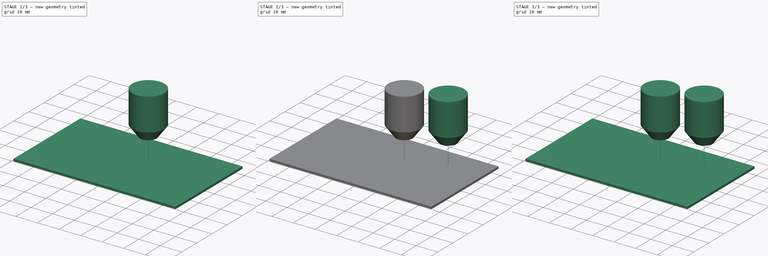
[diagram: build sequence overview — one tinted view per stage of 3, left to right]
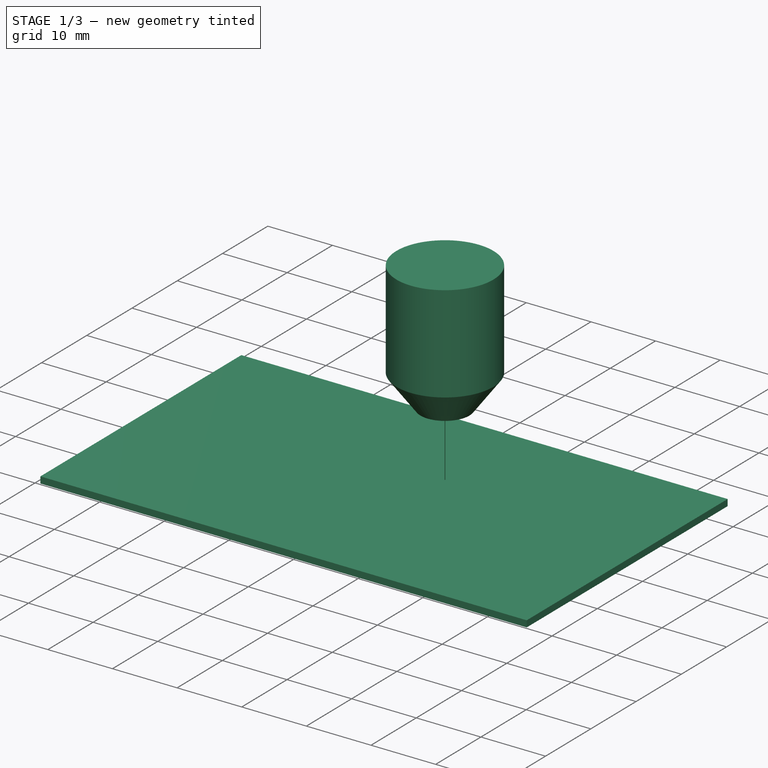
[diagram: stage 1 of 3 — iso view after this stage's code; geometry added in this stage tinted green]
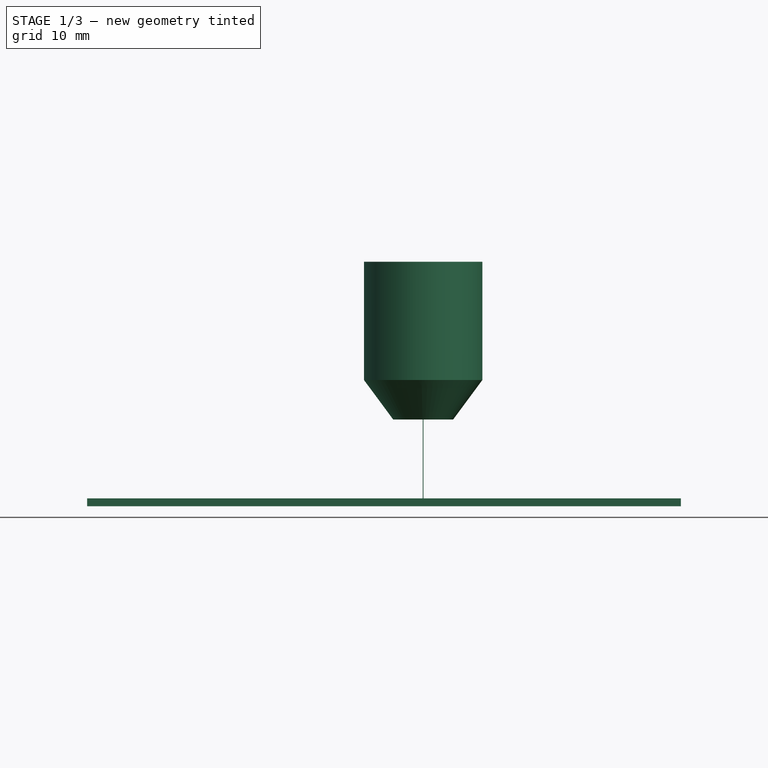
[diagram: stage 1 of 3 — front view after this stage's code; geometry added in this stage tinted green]
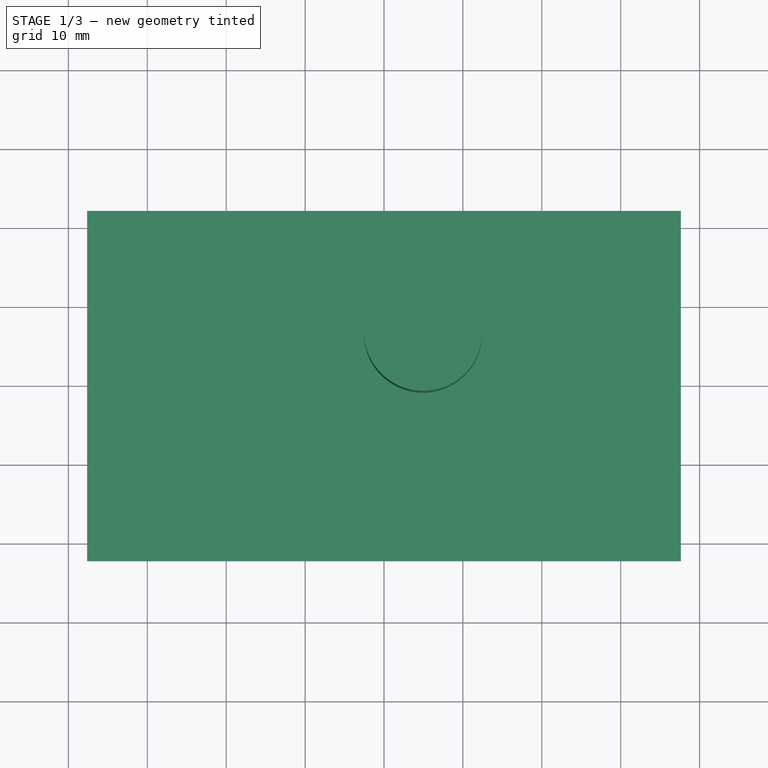
[diagram: stage 1 of 3 — top view after this stage's code; geometry added in this stage tinted green]
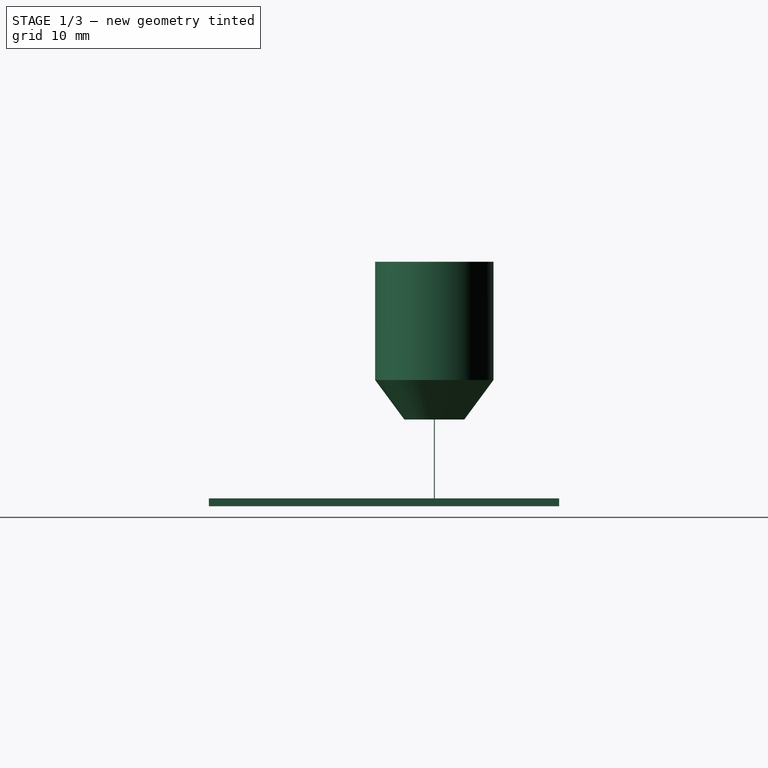
[diagram: stage 1 of 3 — right view after this stage's code; geometry added in this stage tinted green]
FCSTD DOCUMENT  (FreeCAD 0.20R26075 +2 (Git))
Label: test3
License: All rights reserved
LicenseURL: http://en.wikipedia.org/wiki/All_rights_reserved
objects: Part::FeaturePython×4, Path::FeaturePython×4, Sketcher::SketchObject×2, App::DocumentObjectGroup×2, PartDesign::Pad×1, PartDesign::Body×1, App::FeaturePython×1, Part::Part2DObjectPython×1, Path::FeatureCompoundPython×1
note: 10 computed .brp shape members not serialized (recipe doc carries the construction recipe); baked Part::Feature solids carry a one-line shape summary decoded from their .brp

FEATURE [Path::FeaturePython] Engrave  # Path/CAM operation (typed FeaturePython)
  Active = false
  BaseShapes = -> [Clone2D]
  ClearanceHeight = 6
  CoolantMode = None
  CycleTime = 00:00:00
  FinalDepth = 0.9
  OpFinalDepth = 0.9
  OpStartDepth = 1
  OpStockZMax = 1
  OpStockZMin = 0
  OpToolDiameter = 0.1
  SafeHeight = 4
  StartDepth = 1
  StartVertex = 0
  StepDown = 0.1
  ToolController = -> _00um_laser
  expr: StartDepth = OpStartDepth
  expr: FinalDepth = OpFinalDepth
  expr: StepDown = OpToolDiameter
  expr: SafeHeight = OpStockZMax + SetupSheet.SafeHeightOffset
  expr: ClearanceHeight = OpStockZMax + SetupSheet.ClearanceHeightOffset
FEATURE [Path::FeaturePython] Custom  # Path/CAM operation (typed FeaturePython)
  Active = true
  CoolantMode = None
  CycleTime = 00:00:00
  Gcode = G0 Z1 | g1  X0 Y2 F1000 | G2 X0 Y2.0 I0.0 J5 | g1  X20 Y2 | G2 X20 Y12.0 I0.0 J5 | g1  X0 Y-10 | G3 X0 Y-10.0 I0.0 J5 | g1  X20 Y-10 | G3 X20 Y0.0 I0.0 J5
  OpStockZMax = 1
  OpStockZMin = 0
  OpToolDiameter = 0.1
  StartDepth = 1
  ToolController = -> _00um_laser
FEATURE [Path::FeatureCompoundPython] Operations  # Path/CAM operation (typed FeaturePython)
  Group = -> [Engrave,Custom]
  UsePlacements = false
FEATURE [Path::FeaturePython] Job  # Path/CAM operation (typed FeaturePython)
  CycleTime = 00:00:00
  Fixtures = G54
  GeometryTolerance = 0.01
  Model = -> Model
  Operations = -> Operations
  OrderOutputBy = 0
  PostProcessor = 7
  SetupSheet = -> SetupSheet
  SplitOutput = false
  Stock = -> Clone001
  Tools = -> Tools
FEATURE [Part::FeaturePython] CutTool  # WARN: FeaturePython — macro-defined, semantics opaque (R4)
  Placement = pos=(4.96123,6.37858,1) rot=(0,0,1;0rad)
FEATURE [Part::FeaturePython] CutMaterial  # WARN: FeaturePython — macro-defined, semantics opaque (R4)
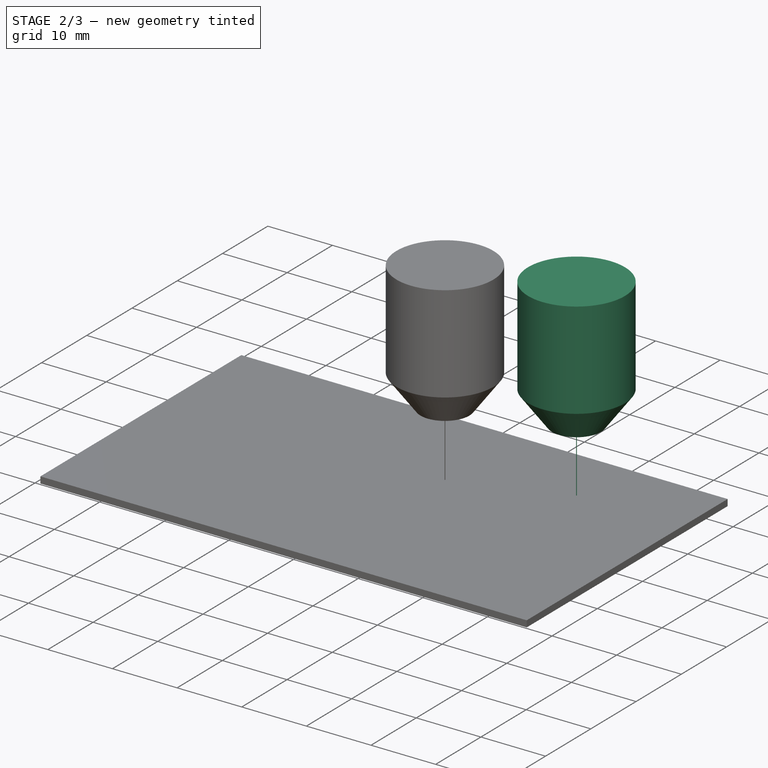
[diagram: stage 2 of 3 — iso view after this stage's code; geometry added in this stage tinted green]
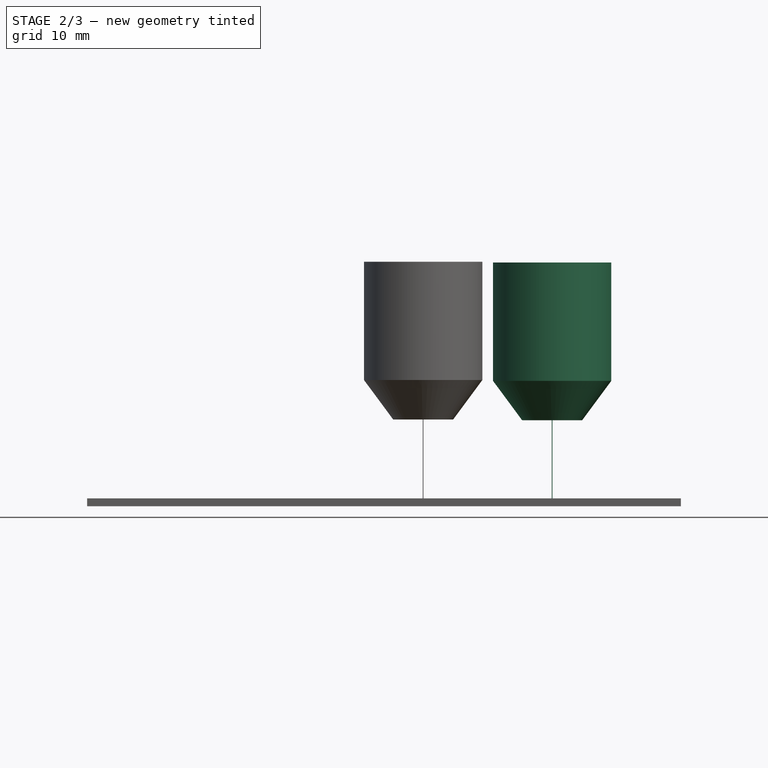
[diagram: stage 2 of 3 — front view after this stage's code; geometry added in this stage tinted green]
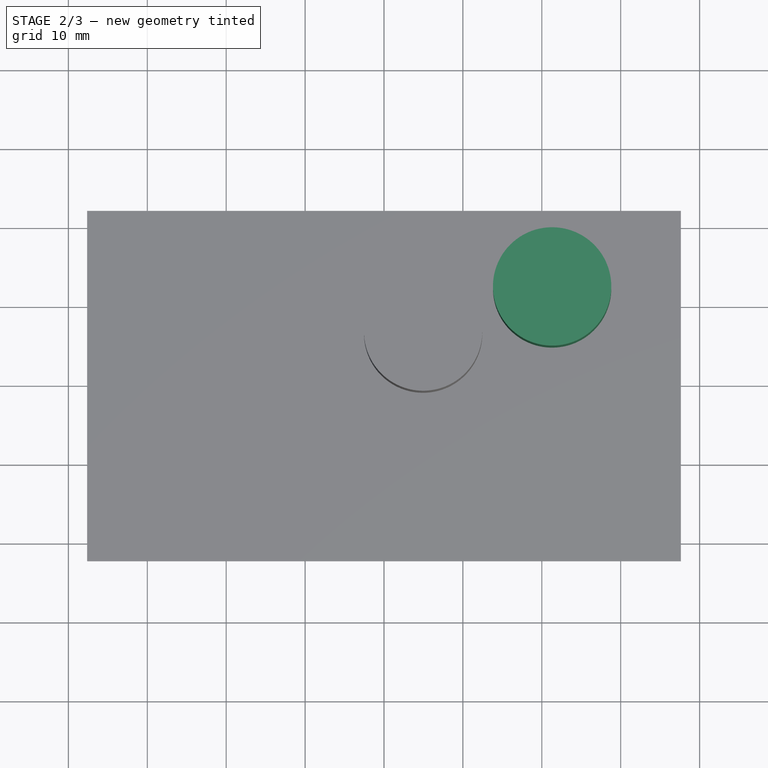
[diagram: stage 2 of 3 — top view after this stage's code; geometry added in this stage tinted green]
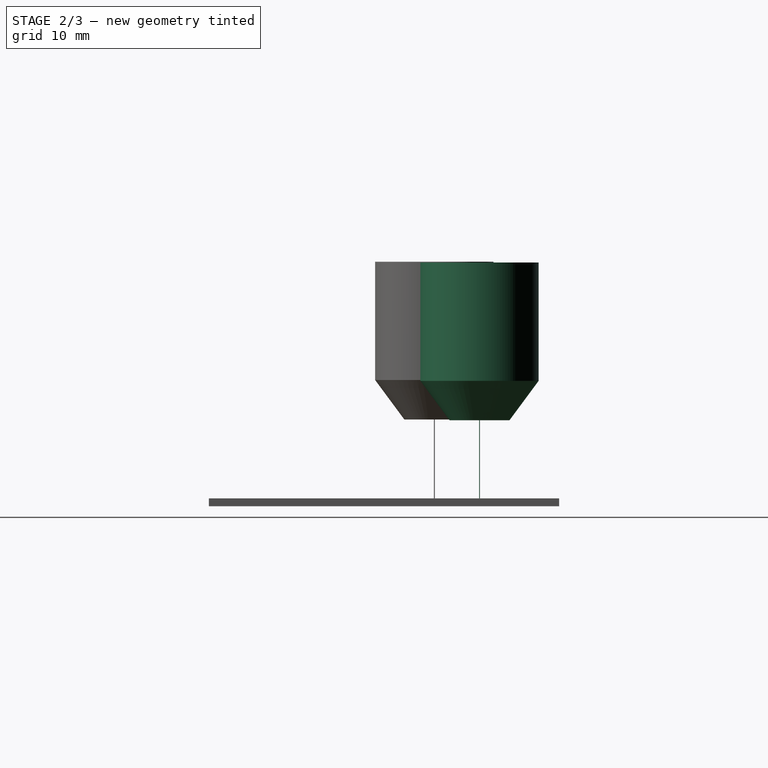
[diagram: stage 2 of 3 — right view after this stage's code; geometry added in this stage tinted green]
FEATURE [PartDesign::Body] Body
  Group = -> [Sketch,Pad]
  Origin = -> Origin
  Tip = -> Pad
FEATURE [Sketcher::SketchObject] Sketch001
  FullyConstrained = false
  MapMode = 5
  Placement = pos=(0,0,1) rot=(0,0,1;0rad)
  Support = -> [Pad]
  sketch-geometry (3):
    g0: Circle CenterX=16.7358 CenterY=12.1024 CenterZ=0 NormalX=0 NormalY=0 NormalZ=1 AngleXU=0 Radius=4.57268
    g1: ArcOfCircle CenterX=14.7995 CenterY=-10.0277 CenterZ=0 NormalX=0 NormalY=0 NormalZ=1 AngleXU=0 Radius=4.85869 StartAngle=4.62688 EndAngle=7.72701
    g2: ArcOfCircle CenterX=28.9073 CenterY=-10.0277 CenterZ=0 NormalX=0 NormalY=0 NormalZ=1 AngleXU=0 Radius=5.11757 StartAngle=4.84209 EndAngle=7.85398
FEATURE [App::FeaturePython] SetupSheet  # Path/CAM operation (typed FeaturePython)
  ClearanceHeightExpression = OpStockZMax+SetupSheet.ClearanceHeightOffset
  ClearanceHeightOffset = 5
  CoolantMode = 0
  CoolantModes = None | Flood | Mist
  FinalDepthExpression = OpFinalDepth
  HorizRapid = 60000
  SafeHeightExpression = OpStockZMax+SetupSheet.SafeHeightOffset
  SafeHeightOffset = 3
  StartDepthExpression = OpStartDepth
  StepDownExpression = OpToolDiameter
  VertRapid = 60000
FEATURE [Part::Part2DObjectPython] Clone2D  label="Model-Sketch001"  # Draft 2D object (typed FeaturePython)
  Fuse = false
  Objects = -> [Sketch001]
  PathResource = Model
  Placement = pos=(0,0,1) rot=(0,0,1;0rad)
  Scale = (1,1,1)
FEATURE [App::DocumentObjectGroup] Model
  Group = -> [Clone2D]
FEATURE [Part::FeaturePython] ToolBit  label="100um laser003"  # Path/CAM toolbit (typed FeaturePython)
  BitPropertyNames = Chipload | CuttingEdgeHeight | Diameter | Flutes | Length | Material | ShankDiameter
  BitShape = <userpath>/Documents/GitHub/FreeCADBuild/Mod\Path\Tools\Shape\laser.fcstd
  Chipload = 0
  CuttingEdgeHeight = 10
  Diameter = 0.1
  Flutes = 0
  Length = 30
  Material = 0
  Placement = pos=(21.3085,12.1024,0.9) rot=(0,0,1;0rad)
  ShankDiameter = 15
  ShapeName = laser
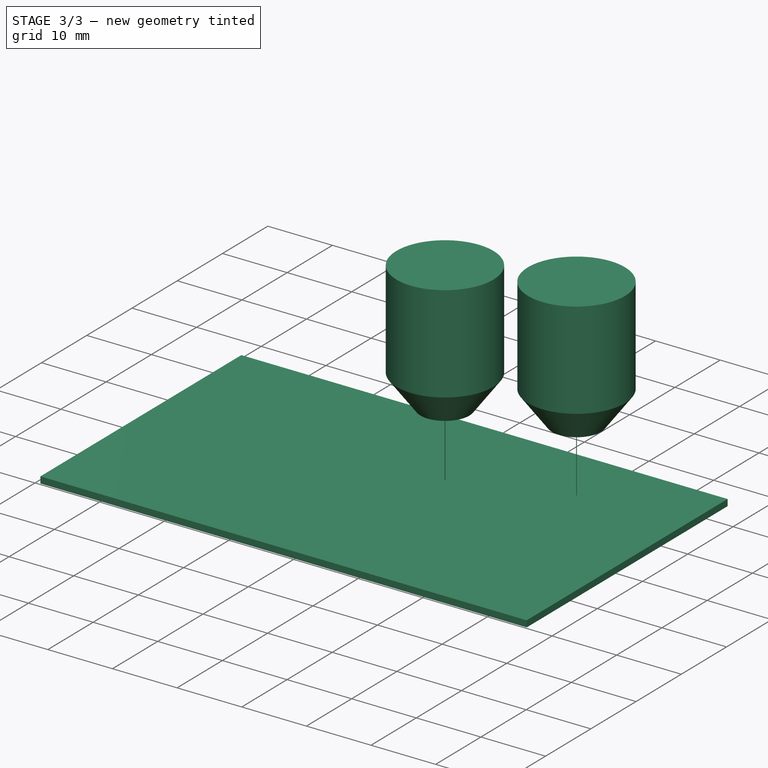
[diagram: stage 3 of 3 — iso view after this stage's code; geometry added in this stage tinted green]
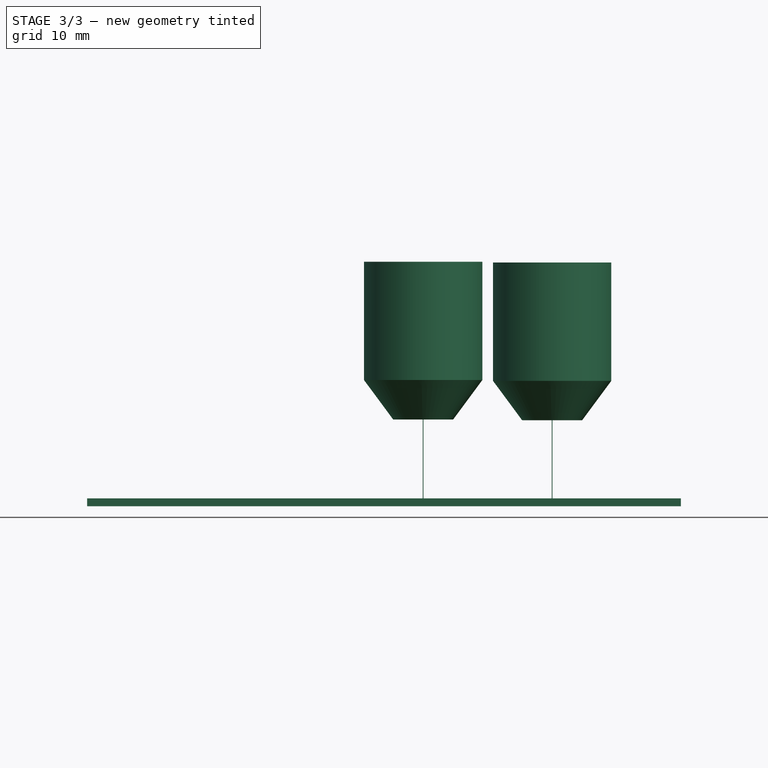
[diagram: stage 3 of 3 — front view after this stage's code; geometry added in this stage tinted green]
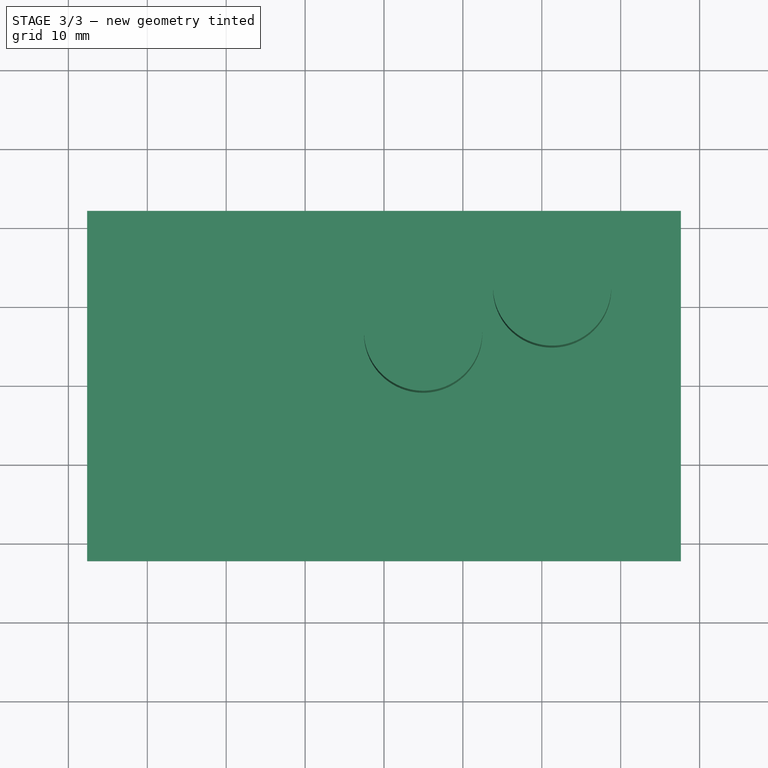
[diagram: stage 3 of 3 — top view after this stage's code; geometry added in this stage tinted green]
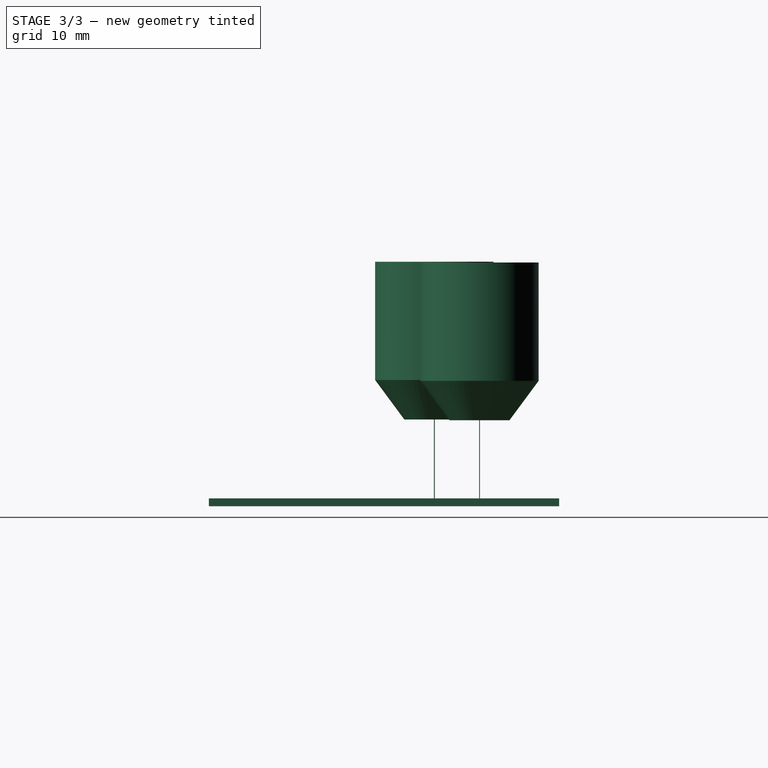
[diagram: stage 3 of 3 — right view after this stage's code; geometry added in this stage tinted green]
FEATURE [Sketcher::SketchObject] Sketch
  FullyConstrained = false
  MapMode = 5
  Support = -> [XY_Plane]
  sketch-geometry (5):
    g0: LineSegment StartX=37.621 StartY=-22.1992 StartZ=0 EndX=37.621 EndY=22.1992 EndZ=0
    g1: LineSegment StartX=37.621 StartY=22.1992 StartZ=0 EndX=-37.621 EndY=22.1992 EndZ=0
    g2: LineSegment StartX=-37.621 StartY=22.1992 StartZ=0 EndX=-37.621 EndY=-22.1992 EndZ=0
    g3: LineSegment StartX=-37.621 StartY=-22.1992 StartZ=0 EndX=37.621 EndY=-22.1992 EndZ=0
    g4: GeomPoint X=0 Y=0 Z=0
  constraints (10):
    c: Coincident(g0,g1)
    c: Coincident(g1,g2)
    c: Coincident(g2,g3)
    c: Coincident(g3,g0)
    c: Horizontal(g1)
    c: Horizontal(g3)
    c: Vertical(g0)
    c: Vertical(g2)
    c: Symmetric(g1,g0,g4)
    c: Coincident(g4,g-1)
FEATURE [PartDesign::Pad] Pad
  Direction = (0,0,1)
  Length = 1
  Length2 = 100
  Profile = -> Sketch
  ReferenceAxis = -> Sketch [N_Axis]
  Type = 0
FEATURE [Path::FeaturePython] _00um_laser  label="100um laser001"  # Path/CAM operation (typed FeaturePython)
  HorizFeed = 10000
  HorizRapid = 60000
  SpindleDir = 0
  SpindleSpeed = 0
  Tool = -> ToolBit
  ToolNumber = 2
  VertFeed = 10000
  VertRapid = 60000
  expr: VertRapid = SetupSheet.VertRapid
  expr: HorizRapid = SetupSheet.HorizRapid
FEATURE [App::DocumentObjectGroup] Tools
  Group = -> [_00um_laser]
FEATURE [Part::FeaturePython] Clone001  label="Stock-Pad"  # Draft clone (typed FeaturePython)
  AttacherType = Attacher::AttachEngine3D
  Fuse = false
  Objects = -> [Pad]
  PathResource = Stock
  Scale = (1,1,1)
  StockType = Unknown
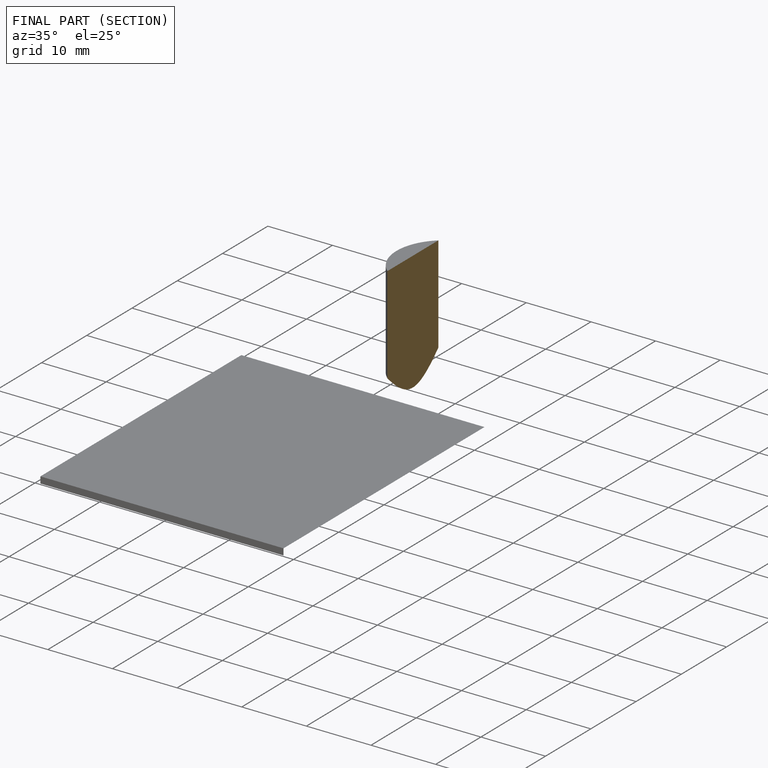
[diagram: finished part — half-section view (interior)]
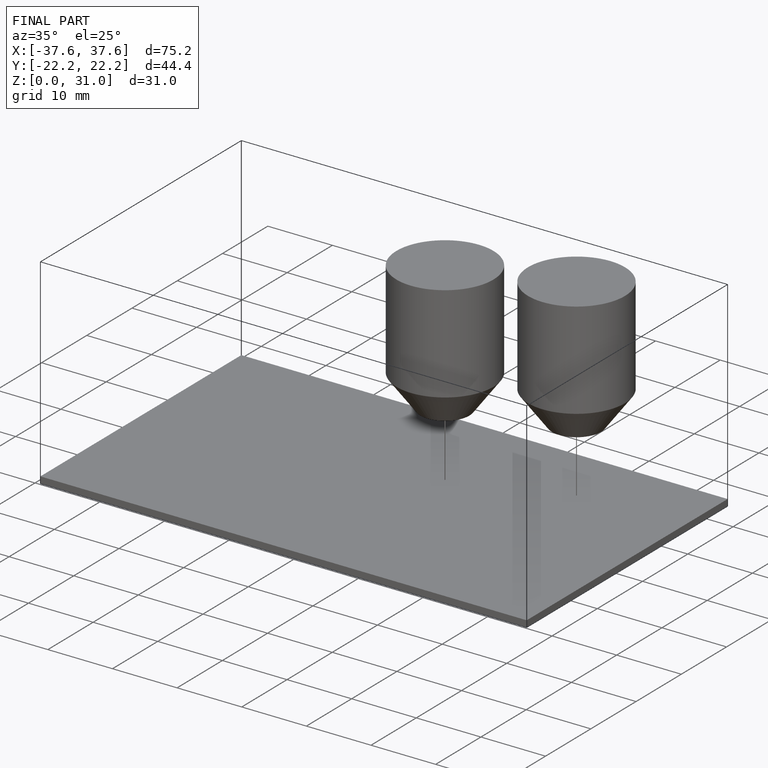
[diagram: finished part — iso view with bounding-box wireframe]
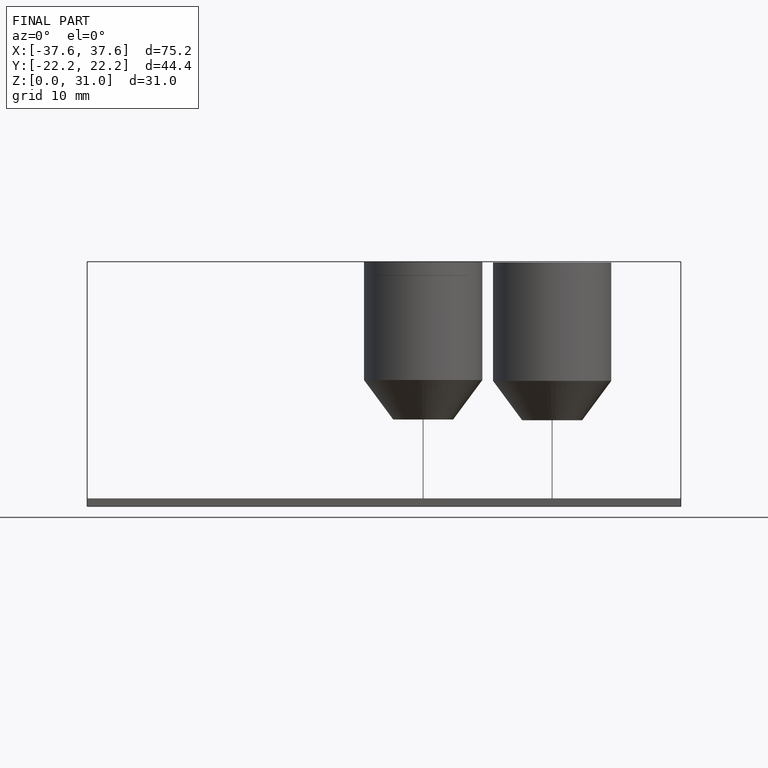
[diagram: finished part — front view with bounding-box wireframe]
